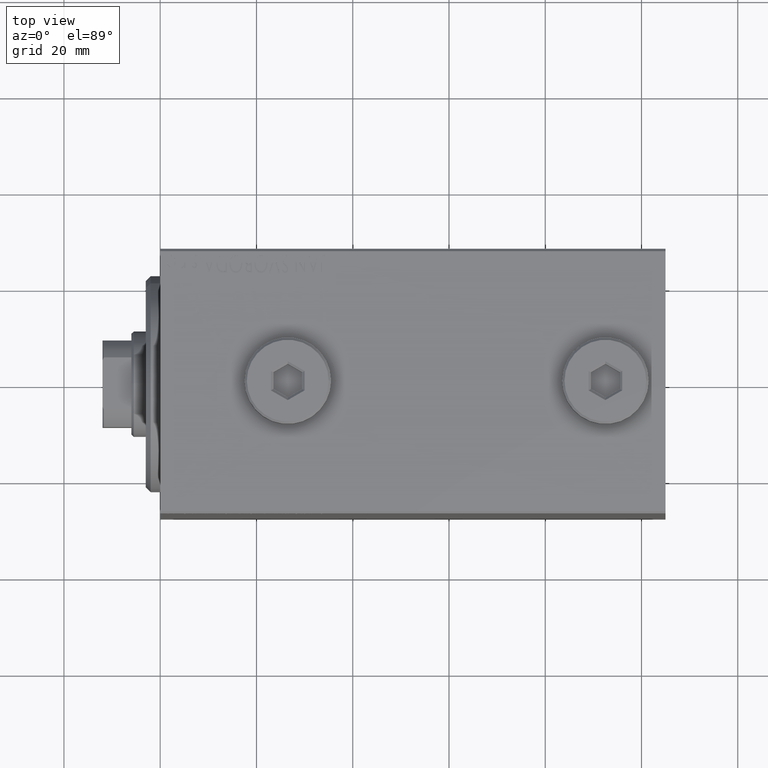
[diagram: clean part render]
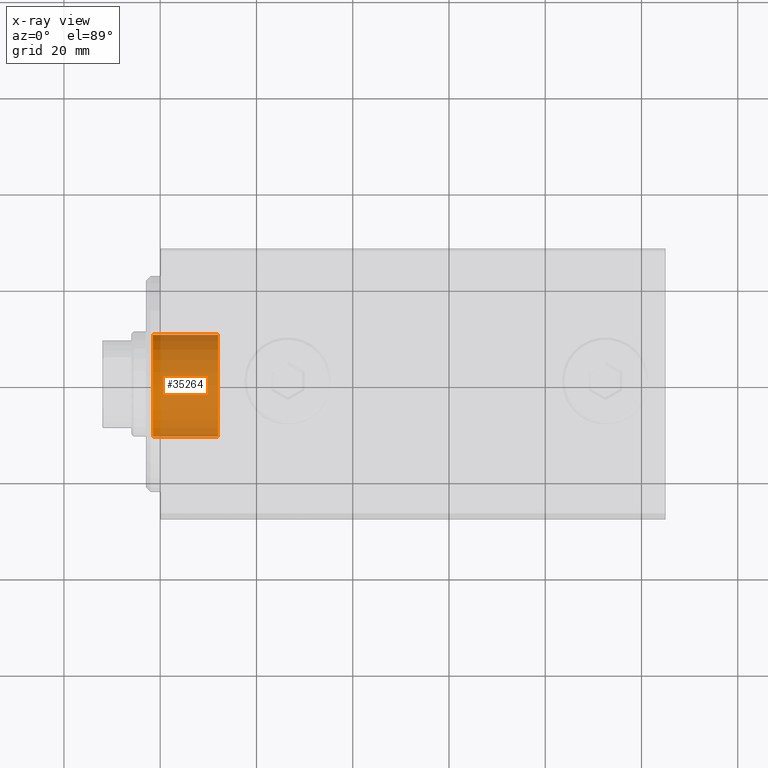
[diagram: x-ray — body ghosted, one internal face saturated and labeled with its STEP entity id]
A machine part, top view, then the same camera in x-ray: the body is ghosted and one INTERNAL B-rep face — a face not visible from any outside direction — is saturated and labeled: STEP entity #35264.
In plain terms, the highlighted cylindrical surface (partial cylindrical patch) has radius 11 mm, axis along (-1, 0, 0).
Its self-contained STEP definition (entity closure, byte-faithful):
#159 = VERTEX_POINT ( 'NONE', #1462 ) ;
#546 = LINE ( 'NONE', #22439, #37811 ) ;
#768 = ORIENTED_EDGE ( 'NONE', *, *, #33639, .F. ) ;
#878 = EDGE_LOOP ( 'NONE', ( #768, #43279, #39242, #26422 ) ) ;
#930 = DIRECTION ( 'NONE',  ( 1.000000000000000000, 0.000000000000000000, 0.000000000000000000 ) ) ;
#960 = CARTESIAN_POINT ( 'NONE',  ( -12.00000000000000000, 0.000000000000000000, 0.000000000000000000 ) ) ;
#1163 = VERTEX_POINT ( 'NONE', #30490 ) ;
#1462 = CARTESIAN_POINT ( 'NONE',  ( 1.499999999999999556, 1.347111479062088405E-15, 11.00000000000000000 ) ) ;
#1650 = VERTEX_POINT ( 'NONE', #15330 ) ;
#3864 = AXIS2_PLACEMENT_3D ( 'NONE', #960, #10365, #35245 ) ;
#9640 = CARTESIAN_POINT ( 'NONE',  ( 1.499999999999999556, 0.000000000000000000, -11.00000000000000000 ) ) ;
#9876 = DIRECTION ( 'NONE',  ( 1.000000000000000000, -0.000000000000000000, -0.000000000000000000 ) ) ;
#10095 = CARTESIAN_POINT ( 'NONE',  ( -12.00000000000000000, 0.000000000000000000, 0.000000000000000000 ) ) ;
#10365 = DIRECTION ( 'NONE',  ( 1.000000000000000000, 0.000000000000000000, 0.000000000000000000 ) ) ;
#11217 = AXIS2_PLACEMENT_3D ( 'NONE', #10095, #9876, #44598 ) ;
#12029 = EDGE_CURVE ( 'NONE', #1163, #33037, #546, .T. ) ;
#14312 = LINE ( 'NONE', #28021, #39353 ) ;
#14648 = CIRCLE ( 'NONE', #33630, 11.00000000000000000 ) ;
#14765 = EDGE_CURVE ( 'NONE', #1650, #159, #14312, .T. ) ;
#15330 = CARTESIAN_POINT ( 'NONE',  ( -12.00000000000000000, 1.347111479062088405E-15, 11.00000000000000000 ) ) ;
#21751 = CARTESIAN_POINT ( 'NONE',  ( 1.499999999999999556, 0.000000000000000000, 0.000000000000000000 ) ) ;
#22439 = CARTESIAN_POINT ( 'NONE',  ( -12.00000000000000000, 0.000000000000000000, -11.00000000000000000 ) ) ;
#23074 = EDGE_CURVE ( 'NONE', #159, #33037, #14648, .T. ) ;
#24474 = FACE_OUTER_BOUND ( 'NONE', #878, .T. ) ;
#25043 = CIRCLE ( 'NONE', #3864, 11.00000000000000000 ) ;
#26422 = ORIENTED_EDGE ( 'NONE', *, *, #12029, .F. ) ;
#27454 = CYLINDRICAL_SURFACE ( 'NONE', #11217, 11.00000000000000000 ) ;
#28021 = CARTESIAN_POINT ( 'NONE',  ( -12.00000000000000000, 1.347111479062088405E-15, 11.00000000000000000 ) ) ;
#28822 = DIRECTION ( 'NONE',  ( 0.000000000000000000, 0.000000000000000000, -1.000000000000000000 ) ) ;
#30490 = CARTESIAN_POINT ( 'NONE',  ( -12.00000000000000000, 0.000000000000000000, -11.00000000000000000 ) ) ;
#33037 = VERTEX_POINT ( 'NONE', #9640 ) ;
#33630 = AXIS2_PLACEMENT_3D ( 'NONE', #21751, #930, #28822 ) ;
#33639 = EDGE_CURVE ( 'NONE', #1650, #1163, #25043, .T. ) ;
#35245 = DIRECTION ( 'NONE',  ( 0.000000000000000000, 0.000000000000000000, -1.000000000000000000 ) ) ;
#35264 = ADVANCED_FACE ( 'NONE', ( #24474 ), #27454, .F. ) ;
#37811 = VECTOR ( 'NONE', #40505, 1000.000000000000000 ) ;
#38769 = DIRECTION ( 'NONE',  ( 1.000000000000000000, -0.000000000000000000, -0.000000000000000000 ) ) ;
#39242 = ORIENTED_EDGE ( 'NONE', *, *, #23074, .T. ) ;
#39353 = VECTOR ( 'NONE', #38769, 1000.000000000000000 ) ;
#40505 = DIRECTION ( 'NONE',  ( 1.000000000000000000, -0.000000000000000000, -0.000000000000000000 ) ) ;
#43279 = ORIENTED_EDGE ( 'NONE', *, *, #14765, .T. ) ;
#44598 = DIRECTION ( 'NONE',  ( 0.000000000000000000, 0.000000000000000000, -1.000000000000000000 ) ) ;